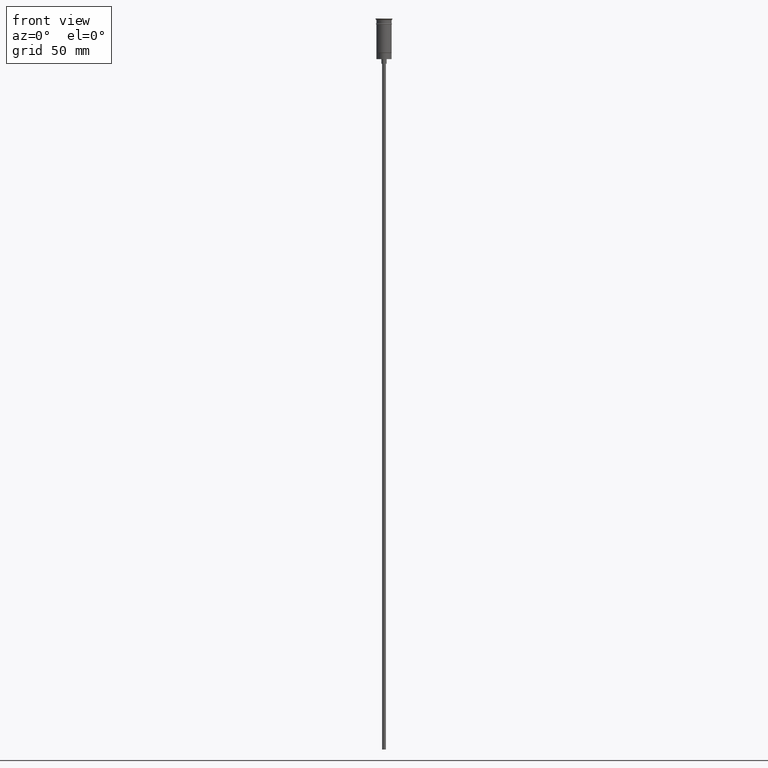
[diagram: clean part render]
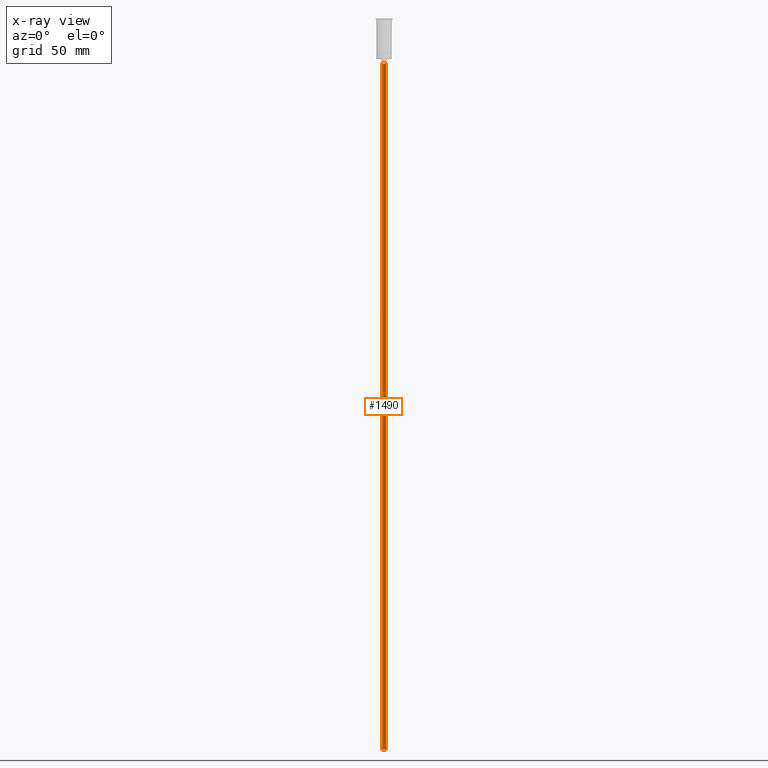
[diagram: x-ray — body ghosted, one internal face saturated and labeled with its STEP entity id]
A machine part, front view, then the same camera in x-ray: the body is ghosted and one INTERNAL B-rep face — a face not visible from any outside direction — is saturated and labeled: STEP entity #1490.
In plain terms, the highlighted cylindrical surface (edge-blend (fillet) strip) has radius 1.25 mm, axis along (-0, -0, 1).
Its self-contained STEP definition (entity closure, byte-faithful):
#2 = VECTOR ( 'NONE', #1293, 1000.000000000000000 ) ;
#11 = CARTESIAN_POINT ( 'NONE',  ( 0.000000000000000000, 0.000000000000000000, -29.50000000000000000 ) ) ;
#56 = VERTEX_POINT ( 'NONE', #1383 ) ;
#91 = EDGE_CURVE ( 'NONE', #56, #1270, #279, .T. ) ;
#156 = CARTESIAN_POINT ( 'NONE',  ( -1.250000000000000000, 1.530808498934191571E-16, -476.5000000000000568 ) ) ;
#279 = LINE ( 'NONE', #156, #584 ) ;
#373 = ORIENTED_EDGE ( 'NONE', *, *, #1256, .T. ) ;
#393 = AXIS2_PLACEMENT_3D ( 'NONE', #11, #982, #476 ) ;
#408 = DIRECTION ( 'NONE',  ( -1.000000000000000000, 0.000000000000000000, 0.000000000000000000 ) ) ;
#450 = CARTESIAN_POINT ( 'NONE',  ( 0.000000000000000000, 0.000000000000000000, -476.5000000000000568 ) ) ;
#476 = DIRECTION ( 'NONE',  ( -1.000000000000000000, 0.000000000000000000, 0.000000000000000000 ) ) ;
#506 = EDGE_CURVE ( 'NONE', #56, #734, #1530, .T. ) ;
#512 = CARTESIAN_POINT ( 'NONE',  ( 1.250000000000000000, 0.000000000000000000, -29.50000000000000000 ) ) ;
#515 = EDGE_LOOP ( 'NONE', ( #746, #1516, #373, #898 ) ) ;
#563 = CYLINDRICAL_SURFACE ( 'NONE', #678, 1.250000000000000000 ) ;
#564 = VERTEX_POINT ( 'NONE', #512 ) ;
#572 = CIRCLE ( 'NONE', #393, 1.250000000000000000 ) ;
#584 = VECTOR ( 'NONE', #1147, 1000.000000000000000 ) ;
#678 = AXIS2_PLACEMENT_3D ( 'NONE', #450, #1449, #1306 ) ;
#734 = VERTEX_POINT ( 'NONE', #1464 ) ;
#746 = ORIENTED_EDGE ( 'NONE', *, *, #506, .F. ) ;
#762 = DIRECTION ( 'NONE',  ( 0.000000000000000000, 0.000000000000000000, -1.000000000000000000 ) ) ;
#831 = AXIS2_PLACEMENT_3D ( 'NONE', #1138, #762, #408 ) ;
#898 = ORIENTED_EDGE ( 'NONE', *, *, #1181, .F. ) ;
#946 = FACE_OUTER_BOUND ( 'NONE', #515, .T. ) ;
#982 = DIRECTION ( 'NONE',  ( 0.000000000000000000, 0.000000000000000000, -1.000000000000000000 ) ) ;
#1048 = LINE ( 'NONE', #1445, #2 ) ;
#1138 = CARTESIAN_POINT ( 'NONE',  ( 0.000000000000000000, 0.000000000000000000, -476.5000000000000568 ) ) ;
#1147 = DIRECTION ( 'NONE',  ( -0.000000000000000000, -0.000000000000000000, 1.000000000000000000 ) ) ;
#1181 = EDGE_CURVE ( 'NONE', #734, #564, #1048, .T. ) ;
#1239 = CARTESIAN_POINT ( 'NONE',  ( -1.250000000000000000, 1.530808498934191571E-16, -29.50000000000000000 ) ) ;
#1256 = EDGE_CURVE ( 'NONE', #1270, #564, #572, .T. ) ;
#1270 = VERTEX_POINT ( 'NONE', #1239 ) ;
#1293 = DIRECTION ( 'NONE',  ( -0.000000000000000000, -0.000000000000000000, 1.000000000000000000 ) ) ;
#1306 = DIRECTION ( 'NONE',  ( 1.000000000000000000, 0.000000000000000000, 0.000000000000000000 ) ) ;
#1383 = CARTESIAN_POINT ( 'NONE',  ( -1.250000000000000000, 1.530808498934191571E-16, -476.5000000000000568 ) ) ;
#1445 = CARTESIAN_POINT ( 'NONE',  ( 1.250000000000000000, 0.000000000000000000, -476.5000000000000568 ) ) ;
#1449 = DIRECTION ( 'NONE',  ( -0.000000000000000000, -0.000000000000000000, 1.000000000000000000 ) ) ;
#1464 = CARTESIAN_POINT ( 'NONE',  ( 1.250000000000000000, 0.000000000000000000, -476.5000000000000568 ) ) ;
#1490 = ADVANCED_FACE ( 'NONE', ( #946 ), #563, .T. ) ;
#1516 = ORIENTED_EDGE ( 'NONE', *, *, #91, .T. ) ;
#1530 = CIRCLE ( 'NONE', #831, 1.250000000000000000 ) ;